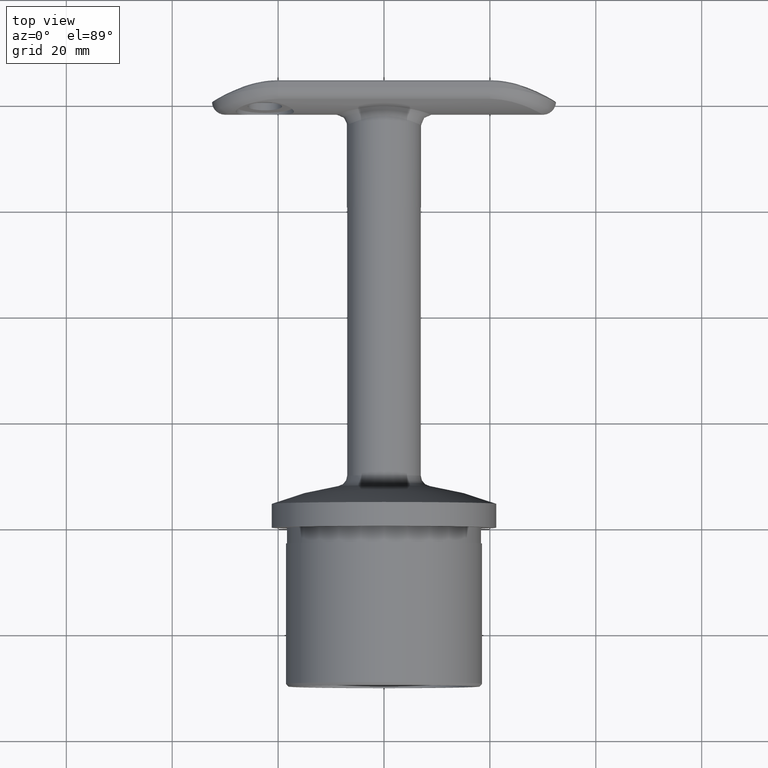
[diagram: clean part render]
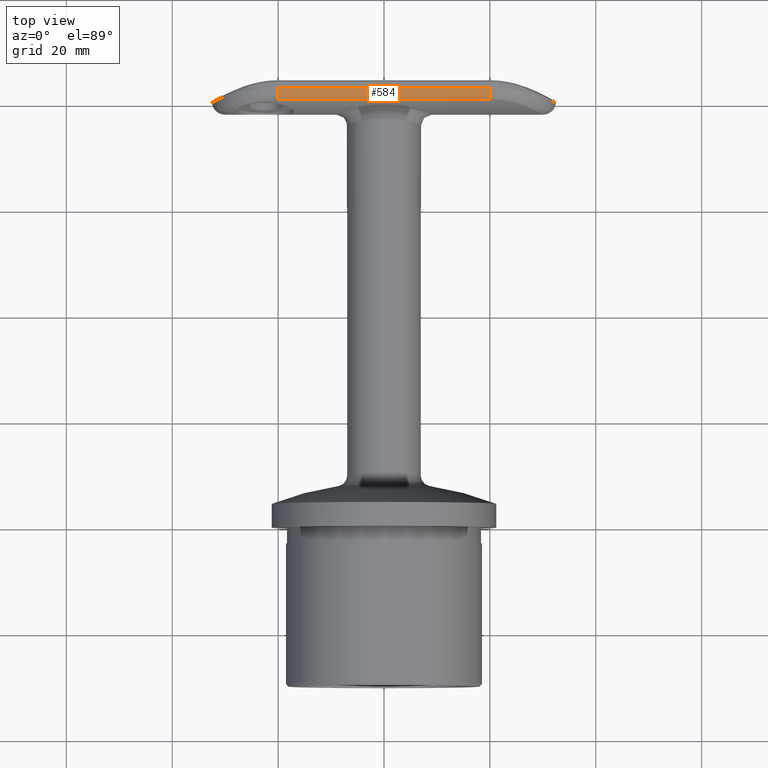
[diagram: same view with one face highlighted and labeled with its STEP entity id]
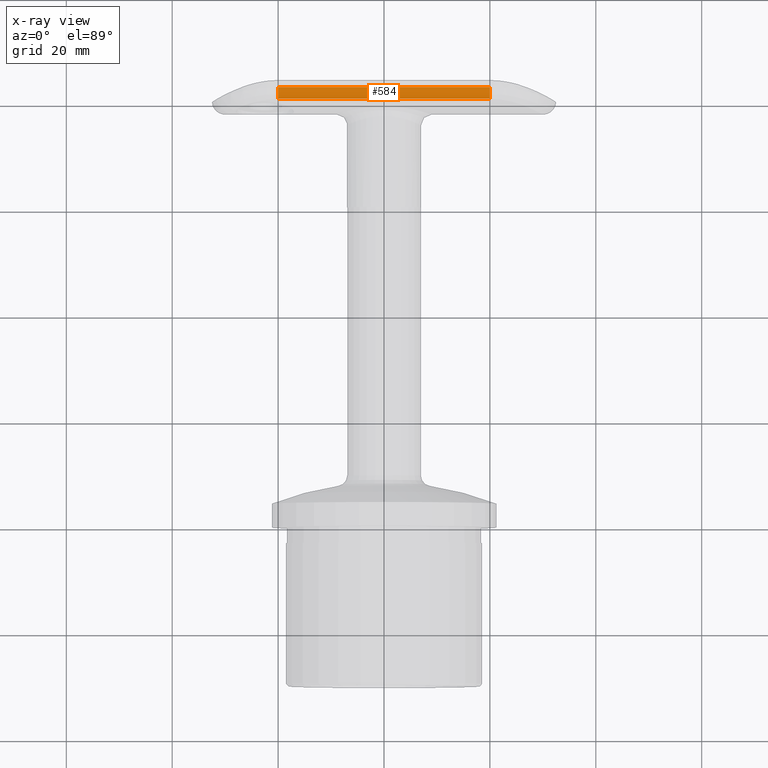
[diagram: x-ray of the same camera — body ghosted, the highlighted face saturated]
A machine part, top view. The second image highlights one B-rep face of the part: STEP entity #584.
The next image is the same camera in x-ray: the body ghosted, the highlighted face saturated — about 0% of this face is hidden behind the body in this view.
In plain terms, the highlighted cylindrical surface (edge-blend (fillet) strip) has radius 2.5 mm, axis along (-1, -0, -0).
Its self-contained STEP definition (entity closure, byte-faithful):
#584 = ADVANCED_FACE ( 'NONE', ( #1385 ), #24780, .T. ) ;
#609 = CIRCLE ( 'NONE', #17080, 2.500000000000000400 ) ;
#1385 = FACE_OUTER_BOUND ( 'NONE', #10117, .T. ) ;
#2158 = CARTESIAN_POINT ( 'NONE',  ( -10.00000000000000000, 2.506685687123321400, 20.00000000000000000 ) ) ;
#2917 = EDGE_CURVE ( 'NONE', #5186, #20292, #10438, .T. ) ;
#3225 = ORIENTED_EDGE ( 'NONE', *, *, #12066, .F. ) ;
#3655 = CARTESIAN_POINT ( 'NONE',  ( -12.50000000000000000, 2.506685687123320500, 32.50000000000000000 ) ) ;
#3907 = LINE ( 'NONE', #23783, #6974 ) ;
#3949 = ORIENTED_EDGE ( 'NONE', *, *, #6334, .F. ) ;
#4054 = ORIENTED_EDGE ( 'NONE', *, *, #2917, .F. ) ;
#4099 = VERTEX_POINT ( 'NONE', #10502 ) ;
#5186 = VERTEX_POINT ( 'NONE', #5469 ) ;
#5469 = CARTESIAN_POINT ( 'NONE',  ( -11.17924528301886900, 0.3022854143784342000, -20.00000000000000400 ) ) ;
#6334 = EDGE_CURVE ( 'NONE', #20292, #4099, #12152, .T. ) ;
#6369 = EDGE_CURVE ( 'NONE', #4099, #17203, #609, .T. ) ;
#6974 = VECTOR ( 'NONE', #18176, 1000.000000000000000 ) ;
#9200 = CARTESIAN_POINT ( 'NONE',  ( -10.00000000000000200, 2.506685687123321400, 32.50000000000000000 ) ) ;
#9630 = DIRECTION ( 'NONE',  ( 1.000000000000000000, 0.0000000000000000000, 0.0000000000000000000 ) ) ;
#10117 = EDGE_LOOP ( 'NONE', ( #4054, #3225, #11095, #3949 ) ) ;
#10438 = CIRCLE ( 'NONE', #13462, 2.500000000000000400 ) ;
#10502 = CARTESIAN_POINT ( 'NONE',  ( -12.50000000000000000, 2.506685687123322700, 20.00000000000000000 ) ) ;
#10871 = CARTESIAN_POINT ( 'NONE',  ( -10.00000000000000000, 2.506685687123325000, -20.00000000000000400 ) ) ;
#11013 = CARTESIAN_POINT ( 'NONE',  ( -12.50000000000000000, 2.506685687123320500, -20.00000000000000400 ) ) ;
#11095 = ORIENTED_EDGE ( 'NONE', *, *, #6369, .F. ) ;
#12066 = EDGE_CURVE ( 'NONE', #17203, #5186, #3907, .T. ) ;
#12152 = LINE ( 'NONE', #3655, #24327 ) ;
#12989 = DIRECTION ( 'NONE',  ( -1.000000000000000000, 0.0000000000000000000, 0.0000000000000000000 ) ) ;
#13462 = AXIS2_PLACEMENT_3D ( 'NONE', #10871, #20729, #12989 ) ;
#15757 = DIRECTION ( 'NONE',  ( 0.0000000000000000000, 0.0000000000000000000, 1.000000000000000000 ) ) ;
#17080 = AXIS2_PLACEMENT_3D ( 'NONE', #2158, #15757, #9630 ) ;
#17203 = VERTEX_POINT ( 'NONE', #22158 ) ;
#18176 = DIRECTION ( 'NONE',  ( -0.0000000000000000000, -0.0000000000000000000, -1.000000000000000000 ) ) ;
#19100 = DIRECTION ( 'NONE',  ( -1.000000000000000000, 0.0000000000000000000, 0.0000000000000000000 ) ) ;
#20292 = VERTEX_POINT ( 'NONE', #11013 ) ;
#20729 = DIRECTION ( 'NONE',  ( 0.0000000000000000000, 0.0000000000000000000, -1.000000000000000000 ) ) ;
#22158 = CARTESIAN_POINT ( 'NONE',  ( -11.17924528301887000, 0.3022854143784353100, 20.00000000000000000 ) ) ;
#22414 = AXIS2_PLACEMENT_3D ( 'NONE', #9200, #23177, #19100 ) ;
#22829 = DIRECTION ( 'NONE',  ( -0.0000000000000000000, -0.0000000000000000000, 1.000000000000000000 ) ) ;
#23177 = DIRECTION ( 'NONE',  ( -0.0000000000000000000, -0.0000000000000000000, -1.000000000000000000 ) ) ;
#23783 = CARTESIAN_POINT ( 'NONE',  ( -11.17924528301886700, 0.3022854143784337000, 32.50000000000000000 ) ) ;
#24327 = VECTOR ( 'NONE', #22829, 1000.000000000000000 ) ;
#24780 = CYLINDRICAL_SURFACE ( 'NONE', #22414, 2.500000000000000400 ) ;